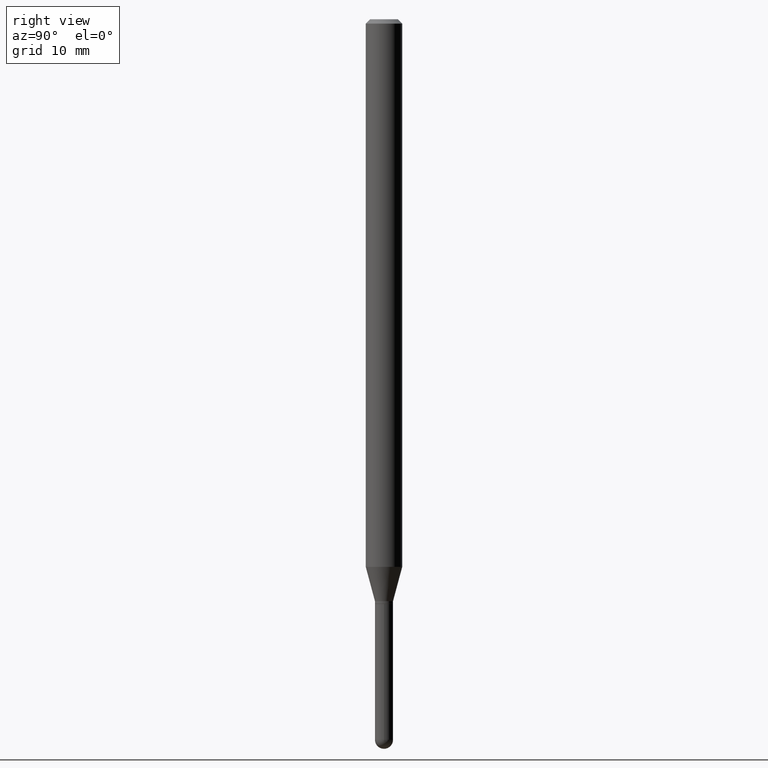
[diagram: clean part render]
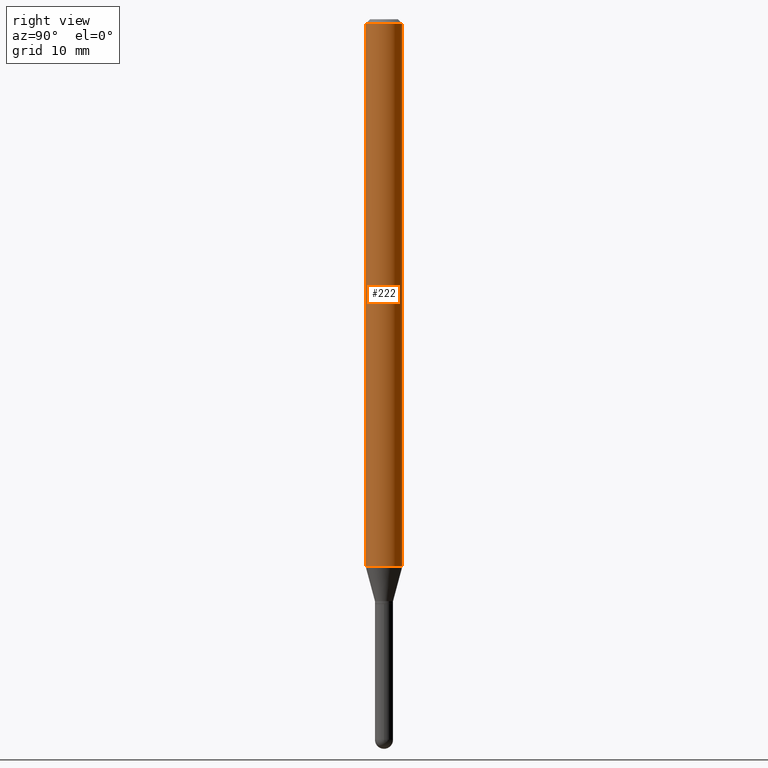
[diagram: same view with one face highlighted and labeled with its STEP entity id]
A machine part, right view. The second image highlights one B-rep face of the part: STEP entity #222.
In plain terms, the highlighted cylindrical surface (edge-blend (fillet) strip) has radius 1.5875 mm, axis along (-0, 0, 1).
Its self-contained STEP definition (entity closure, byte-faithful):
#16 = CARTESIAN_POINT ( 'NONE',  ( 4.588745114027310997E-29, -6.551601533170026428E-15, -1.876440399561581485 ) ) ;
#27 = DIRECTION ( 'NONE',  ( -6.982962677686265922E-15, -1.000000000000000000, 3.491505264276321364E-15 ) ) ;
#38 = VERTEX_POINT ( 'NONE', #504 ) ;
#47 = AXIS2_PLACEMENT_3D ( 'NONE', #331, #210, #487 ) ;
#54 = CIRCLE ( 'NONE', #47, 0.06250000000000000000 ) ;
#69 = VERTEX_POINT ( 'NONE', #198 ) ;
#83 = LINE ( 'NONE', #129, #451 ) ;
#95 = VECTOR ( 'NONE', #252, 39.37007874015748143 ) ;
#129 = CARTESIAN_POINT ( 'NONE',  ( -4.364351673553916201E-16, -0.06250000000000000000, 2.182190790172700853E-16 ) ) ;
#140 = EDGE_CURVE ( 'NONE', #38, #334, #372, .T. ) ;
#141 = ORIENTED_EDGE ( 'NONE', *, *, #417, .F. ) ;
#147 = EDGE_CURVE ( 'NONE', #274, #38, #395, .T. ) ;
#177 = CARTESIAN_POINT ( 'NONE',  ( 4.440892098501086659E-16, 0.06249999999999995143, -0.01500000000000022669 ) ) ;
#182 = ORIENTED_EDGE ( 'NONE', *, *, #490, .F. ) ;
#198 = CARTESIAN_POINT ( 'NONE',  ( -4.364351673553912750E-16, -0.06250000000000005551, -0.01499999999999979128 ) ) ;
#210 = DIRECTION ( 'NONE',  ( -2.445452099144444878E-29, 3.491505264276321759E-15, 1.000000000000000000 ) ) ;
#214 = DIRECTION ( 'NONE',  ( -2.445452099144444878E-29, 3.491505264276321759E-15, 1.000000000000000000 ) ) ;
#222 = ADVANCED_FACE ( 'NONE', ( #374 ), #338, .T. ) ;
#252 = DIRECTION ( 'NONE',  ( -2.445452099144444878E-29, 3.491505264276321759E-15, 1.000000000000000000 ) ) ;
#259 = DIRECTION ( 'NONE',  ( -2.445452099144444878E-29, 3.491505264276321759E-15, 1.000000000000000000 ) ) ;
#273 = AXIS2_PLACEMENT_3D ( 'NONE', #496, #259, #27 ) ;
#274 = VERTEX_POINT ( 'NONE', #470 ) ;
#294 = CARTESIAN_POINT ( 'NONE',  ( 4.440892098500625669E-16, 0.06250000000000000000, -2.182190790172700853E-16 ) ) ;
#295 = ORIENTED_EDGE ( 'NONE', *, *, #147, .T. ) ;
#316 = EDGE_LOOP ( 'NONE', ( #295, #471, #182, #141 ) ) ;
#331 = CARTESIAN_POINT ( 'NONE',  ( 3.668178148716669734E-31, -5.237257896414485818E-17, -0.01500000000000000812 ) ) ;
#334 = VERTEX_POINT ( 'NONE', #177 ) ;
#338 = CYLINDRICAL_SURFACE ( 'NONE', #273, 0.06250000000000000000 ) ;
#372 = LINE ( 'NONE', #294, #95 ) ;
#374 = FACE_OUTER_BOUND ( 'NONE', #316, .T. ) ;
#395 = CIRCLE ( 'NONE', #422, 0.06250000000000000000 ) ;
#407 = DIRECTION ( 'NONE',  ( -2.445452099144444878E-29, 3.491505264276321759E-15, 1.000000000000000000 ) ) ;
#417 = EDGE_CURVE ( 'NONE', #274, #69, #83, .T. ) ;
#422 = AXIS2_PLACEMENT_3D ( 'NONE', #16, #214, #492 ) ;
#451 = VECTOR ( 'NONE', #407, 39.37007874015748143 ) ;
#470 = CARTESIAN_POINT ( 'NONE',  ( -4.364351673553459155E-16, -0.06250000000000657807, -1.876440399561581263 ) ) ;
#471 = ORIENTED_EDGE ( 'NONE', *, *, #140, .T. ) ;
#487 = DIRECTION ( 'NONE',  ( -6.982962677686265922E-15, -1.000000000000000000, 3.483106191921935554E-15 ) ) ;
#490 = EDGE_CURVE ( 'NONE', #69, #334, #54, .T. ) ;
#492 = DIRECTION ( 'NONE',  ( -6.982962677686265922E-15, -1.000000000000000000, 4.370956789862821150E-15 ) ) ;
#496 = CARTESIAN_POINT ( 'NONE',  ( 0.000000000000000000, 0.000000000000000000, 0.000000000000000000 ) ) ;
#504 = CARTESIAN_POINT ( 'NONE',  ( 4.440892098501081729E-16, 0.06249999999999341499, -1.876440399561581707 ) ) ;